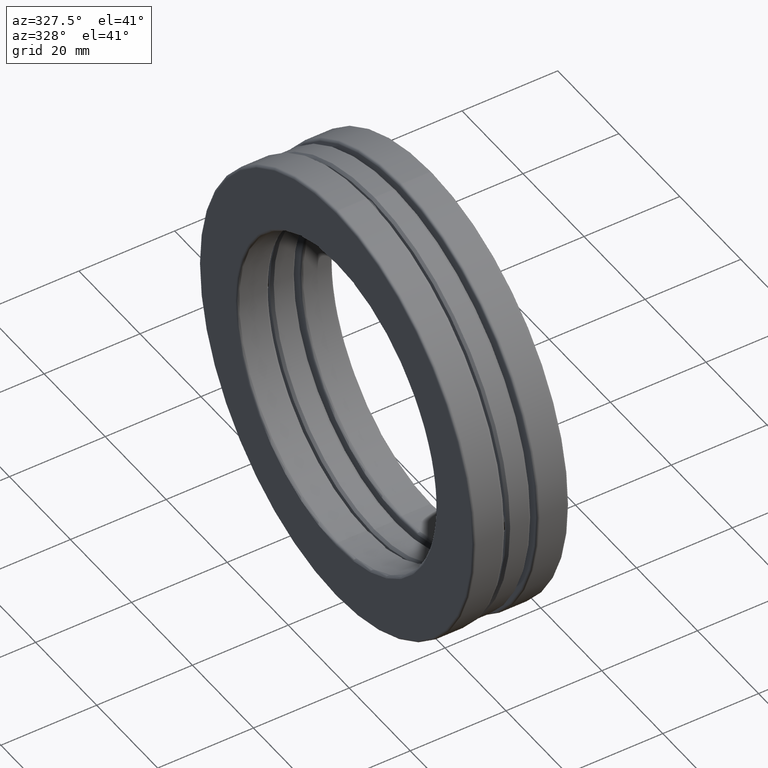
[diagram: clean part render]
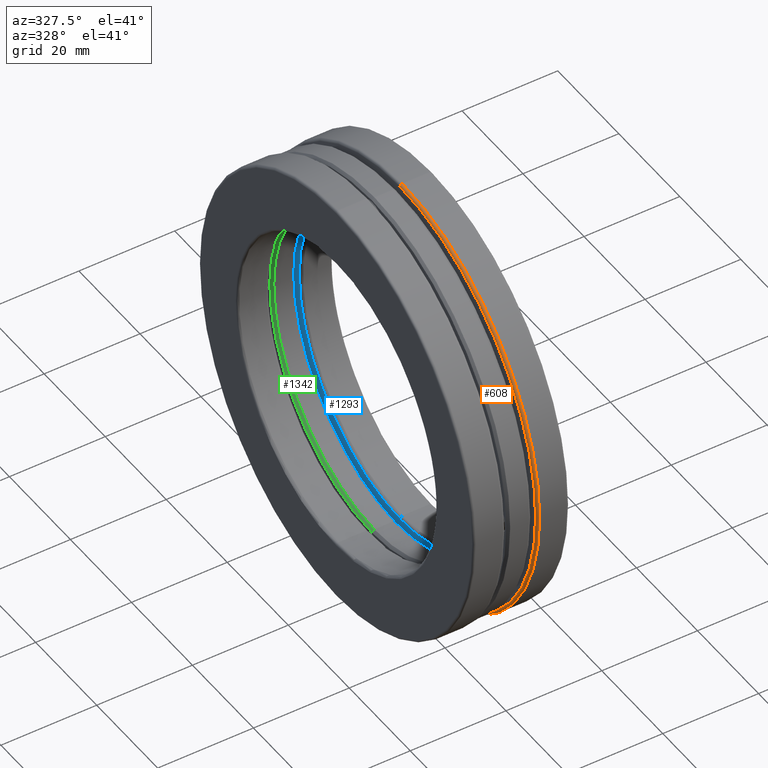
[diagram: same view with three faces highlighted in distinct colors, each labeled with its STEP entity id]
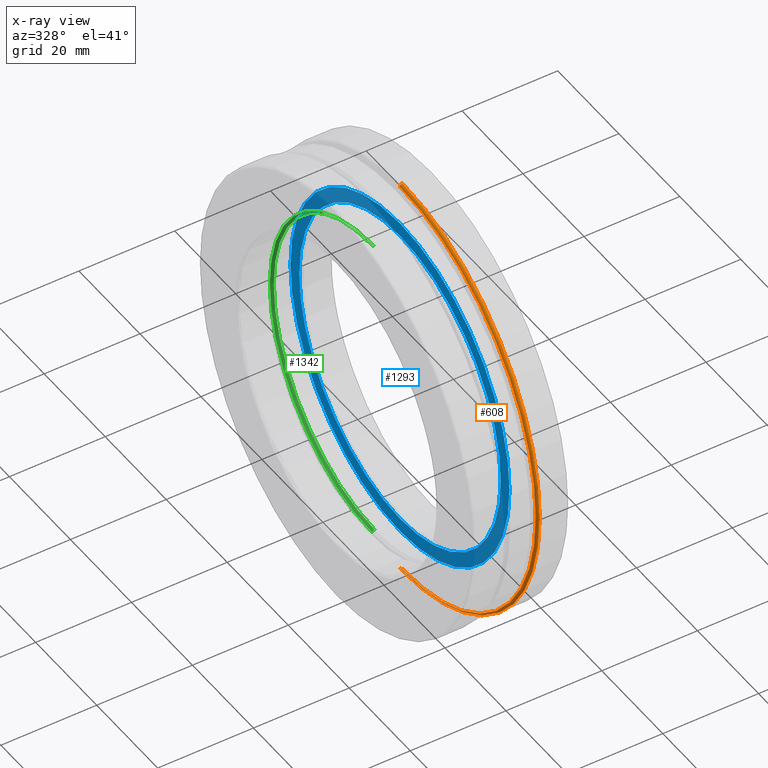
[diagram: x-ray of the same camera — body ghosted, the three highlighted faces saturated]
A machine part, auxiliary view with three faces highlighted in distinct colors.
The next image is the same camera in x-ray (body ghosted, the three faces saturated) — at least one of them is partly hidden behind the body in this view.
Their STEP definitions:

[orange] entity #608 — the highlighted toroidal blend (fillet) surface has major radius 44.4881 mm and minor (blend) radius 0.508 mm.
#23 = CARTESIAN_POINT ( 'NONE',  ( 0.1311692900000003825, 2.157215336698062273E-16, -1.751499999999999613 ) ) ;
#44 = DIRECTION ( 'NONE',  ( -1.000000000000000000, -0.0000000000000000000, -0.0000000000000000000 ) ) ;
#94 = CIRCLE ( 'NONE', #1604, 1.771499999999999631 ) ;
#105 = ORIENTED_EDGE ( 'NONE', *, *, #914, .T. ) ;
#110 = CIRCLE ( 'NONE', #789, 1.751499999999999613 ) ;
#119 = CIRCLE ( 'NONE', #490, 0.01999999999999978531 ) ;
#147 = DIRECTION ( 'NONE',  ( 0.0000000000000000000, 0.0000000000000000000, -1.000000000000000000 ) ) ;
#150 = VERTEX_POINT ( 'NONE', #1613 ) ;
#461 = AXIS2_PLACEMENT_3D ( 'NONE', #689, #981, #147 ) ;
#481 = EDGE_CURVE ( 'NONE', #150, #1442, #94, .T. ) ;
#490 = AXIS2_PLACEMENT_3D ( 'NONE', #1127, #1035, #593 ) ;
#540 = EDGE_CURVE ( 'NONE', #150, #877, #119, .T. ) ;
#593 = DIRECTION ( 'NONE',  ( 0.0000000000000000000, -1.224646799147355919E-16, 1.000000000000000000 ) ) ;
#608 = ADVANCED_FACE ( 'NONE', ( #656 ), #617, .T. ) ;
#617 = TOROIDAL_SURFACE ( 'NONE', #1635, 1.751499999999999835, 0.01999999999999976796 ) ;
#639 = VERTEX_POINT ( 'NONE', #932 ) ;
#656 = FACE_OUTER_BOUND ( 'NONE', #1600, .T. ) ;
#689 = CARTESIAN_POINT ( 'NONE',  ( 0.1511692900000001227, 0.0000000000000000000, 1.751499999999999835 ) ) ;
#768 = ORIENTED_EDGE ( 'NONE', *, *, #540, .F. ) ;
#789 = AXIS2_PLACEMENT_3D ( 'NONE', #1432, #44, #1145 ) ;
#863 = ORIENTED_EDGE ( 'NONE', *, *, #481, .T. ) ;
#877 = VERTEX_POINT ( 'NONE', #23 ) ;
#914 = EDGE_CURVE ( 'NONE', #1442, #639, #1456, .T. ) ;
#932 = CARTESIAN_POINT ( 'NONE',  ( 0.1311692900000003825, 0.0000000000000000000, 1.751499999999999613 ) ) ;
#964 = DIRECTION ( 'NONE',  ( 0.0000000000000000000, 0.0000000000000000000, 1.000000000000000000 ) ) ;
#981 = DIRECTION ( 'NONE',  ( 0.0000000000000000000, -1.000000000000000000, 0.0000000000000000000 ) ) ;
#992 = DIRECTION ( 'NONE',  ( -1.000000000000000000, -0.0000000000000000000, -0.0000000000000000000 ) ) ;
#1035 = DIRECTION ( 'NONE',  ( -0.0000000000000000000, 1.000000000000000000, 1.224646799147353207E-16 ) ) ;
#1127 = CARTESIAN_POINT ( 'NONE',  ( 0.1511692900000001227, 2.144968868706589015E-16, -1.751499999999999835 ) ) ;
#1145 = DIRECTION ( 'NONE',  ( 0.0000000000000000000, 0.0000000000000000000, 1.000000000000000000 ) ) ;
#1208 = CARTESIAN_POINT ( 'NONE',  ( 0.1511692900000001227, 0.0000000000000000000, 1.771499999999999631 ) ) ;
#1236 = CARTESIAN_POINT ( 'NONE',  ( 0.1511692900000001227, 0.0000000000000000000, 0.0000000000000000000 ) ) ;
#1298 = DIRECTION ( 'NONE',  ( 0.0000000000000000000, 0.0000000000000000000, 1.000000000000000000 ) ) ;
#1384 = DIRECTION ( 'NONE',  ( -1.000000000000000000, -0.0000000000000000000, -0.0000000000000000000 ) ) ;
#1432 = CARTESIAN_POINT ( 'NONE',  ( 0.1311692900000003825, 0.0000000000000000000, 0.0000000000000000000 ) ) ;
#1442 = VERTEX_POINT ( 'NONE', #1208 ) ;
#1456 = CIRCLE ( 'NONE', #461, 0.01999999999999978531 ) ;
#1505 = ORIENTED_EDGE ( 'NONE', *, *, #1659, .F. ) ;
#1591 = CARTESIAN_POINT ( 'NONE',  ( 0.1511692900000001227, 0.0000000000000000000, 0.0000000000000000000 ) ) ;
#1600 = EDGE_LOOP ( 'NONE', ( #768, #863, #105, #1505 ) ) ;
#1604 = AXIS2_PLACEMENT_3D ( 'NONE', #1236, #1384, #964 ) ;
#1613 = CARTESIAN_POINT ( 'NONE',  ( 0.1511692900000001227, 2.169461804689536025E-16, -1.771499999999999631 ) ) ;
#1635 = AXIS2_PLACEMENT_3D ( 'NONE', #1591, #992, #1298 ) ;
#1659 = EDGE_CURVE ( 'NONE', #877, #639, #110, .T. ) ;

[blue] entity #1293 — the highlighted planar face has unit normal (1, 0, 0).
#29 = CARTESIAN_POINT ( 'NONE',  ( 0.1311692900000003825, 0.0000000000000000000, 0.0000000000000000000 ) ) ;
#52 = DIRECTION ( 'NONE',  ( 0.0000000000000000000, 0.0000000000000000000, 1.000000000000000000 ) ) ;
#88 = CARTESIAN_POINT ( 'NONE',  ( 0.1311692900000003825, 1.591734677191772350E-16, -1.299749999999999961 ) ) ;
#184 = VERTEX_POINT ( 'NONE', #1167 ) ;
#193 = CARTESIAN_POINT ( 'NONE',  ( 0.1311692900000003825, 0.0000000000000000000, 0.0000000000000000000 ) ) ;
#210 = ORIENTED_EDGE ( 'NONE', *, *, #488, .F. ) ;
#216 = FACE_OUTER_BOUND ( 'NONE', #1573, .T. ) ;
#267 = DIRECTION ( 'NONE',  ( -1.000000000000000000, -0.0000000000000000000, -0.0000000000000000000 ) ) ;
#293 = VERTEX_POINT ( 'NONE', #1055 ) ;
#333 = DIRECTION ( 'NONE',  ( 1.000000000000000000, 0.0000000000000000000, 0.0000000000000000000 ) ) ;
#371 = EDGE_CURVE ( 'NONE', #1329, #1459, #1667, .T. ) ;
#426 = CARTESIAN_POINT ( 'NONE',  ( 0.1311692900000003825, 0.0000000000000000000, 0.0000000000000000000 ) ) ;
#443 = EDGE_CURVE ( 'NONE', #293, #184, #853, .T. ) ;
#488 = EDGE_CURVE ( 'NONE', #1459, #1329, #1549, .T. ) ;
#531 = AXIS2_PLACEMENT_3D ( 'NONE', #1784, #943, #1489 ) ;
#625 = ORIENTED_EDGE ( 'NONE', *, *, #1028, .T. ) ;
#626 = ORIENTED_EDGE ( 'NONE', *, *, #371, .F. ) ;
#667 = CARTESIAN_POINT ( 'NONE',  ( 0.1311692900000003825, 0.0000000000000000000, 1.299749999999999961 ) ) ;
#679 = ORIENTED_EDGE ( 'NONE', *, *, #443, .T. ) ;
#691 = CARTESIAN_POINT ( 'NONE',  ( 0.1311692900000003825, 0.0000000000000000000, 0.0000000000000000000 ) ) ;
#747 = EDGE_LOOP ( 'NONE', ( #210, #626 ) ) ;
#851 = FACE_BOUND ( 'NONE', #747, .T. ) ;
#853 = CIRCLE ( 'NONE', #1453, 1.413594346333711504 ) ;
#871 = DIRECTION ( 'NONE',  ( -1.000000000000000000, -0.0000000000000000000, -0.0000000000000000000 ) ) ;
#943 = DIRECTION ( 'NONE',  ( -1.000000000000000000, -0.0000000000000000000, -0.0000000000000000000 ) ) ;
#957 = DIRECTION ( 'NONE',  ( -1.000000000000000000, -0.0000000000000000000, -0.0000000000000000000 ) ) ;
#968 = DIRECTION ( 'NONE',  ( 0.0000000000000000000, 0.0000000000000000000, 1.000000000000000000 ) ) ;
#1028 = EDGE_CURVE ( 'NONE', #184, #293, #1079, .T. ) ;
#1038 = AXIS2_PLACEMENT_3D ( 'NONE', #691, #957, #968 ) ;
#1055 = CARTESIAN_POINT ( 'NONE',  ( 0.1311692900000003825, 1.868351772949180806E-16, -1.413594346333711504 ) ) ;
#1056 = AXIS2_PLACEMENT_3D ( 'NONE', #193, #333, #1154 ) ;
#1079 = CIRCLE ( 'NONE', #1470, 1.413594346333711504 ) ;
#1154 = DIRECTION ( 'NONE',  ( 0.0000000000000000000, 0.0000000000000000000, -1.000000000000000000 ) ) ;
#1167 = CARTESIAN_POINT ( 'NONE',  ( 0.1311692900000003825, 0.0000000000000000000, 1.413594346333711504 ) ) ;
#1257 = DIRECTION ( 'NONE',  ( 0.0000000000000000000, 0.0000000000000000000, 1.000000000000000000 ) ) ;
#1293 = ADVANCED_FACE ( 'NONE', ( #851, #216 ), #1718, .F. ) ;
#1329 = VERTEX_POINT ( 'NONE', #88 ) ;
#1453 = AXIS2_PLACEMENT_3D ( 'NONE', #426, #267, #1257 ) ;
#1459 = VERTEX_POINT ( 'NONE', #667 ) ;
#1470 = AXIS2_PLACEMENT_3D ( 'NONE', #29, #871, #52 ) ;
#1489 = DIRECTION ( 'NONE',  ( 0.0000000000000000000, 0.0000000000000000000, 1.000000000000000000 ) ) ;
#1549 = CIRCLE ( 'NONE', #1038, 1.299749999999999961 ) ;
#1573 = EDGE_LOOP ( 'NONE', ( #625, #679 ) ) ;
#1667 = CIRCLE ( 'NONE', #531, 1.299749999999999961 ) ;
#1718 = PLANE ( 'NONE',  #1056 ) ;
#1784 = CARTESIAN_POINT ( 'NONE',  ( 0.1311692900000003825, 0.0000000000000000000, 0.0000000000000000000 ) ) ;

[green] entity #1342 — the highlighted conical surface has half-angle 45 deg.
#14 = ORIENTED_EDGE ( 'NONE', *, *, #677, .F. ) ;
#17 = VERTEX_POINT ( 'NONE', #1538 ) ;
#66 = FACE_OUTER_BOUND ( 'NONE', #642, .T. ) ;
#70 = LINE ( 'NONE', #915, #1631 ) ;
#78 = EDGE_CURVE ( 'NONE', #1485, #1445, #1510, .T. ) ;
#252 = ORIENTED_EDGE ( 'NONE', *, *, #447, .F. ) ;
#254 = CARTESIAN_POINT ( 'NONE',  ( -0.07837499999999975042, 0.0000000000000000000, 1.299750000000000183 ) ) ;
#257 = CARTESIAN_POINT ( 'NONE',  ( -0.09837499999999969880, 0.0000000000000000000, 1.319750000000000423 ) ) ;
#359 = VECTOR ( 'NONE', #1407, 39.37007874015748143 ) ;
#447 = EDGE_CURVE ( 'NONE', #1485, #879, #1059, .T. ) ;
#564 = CARTESIAN_POINT ( 'NONE',  ( -0.07837499999999975042, 1.591734677191772597E-16, -1.299750000000000183 ) ) ;
#642 = EDGE_LOOP ( 'NONE', ( #14, #252, #860, #1780 ) ) ;
#677 = EDGE_CURVE ( 'NONE', #879, #17, #70, .T. ) ;
#843 = DIRECTION ( 'NONE',  ( -1.000000000000000000, -0.0000000000000000000, -0.0000000000000000000 ) ) ;
#847 = CARTESIAN_POINT ( 'NONE',  ( -0.07837499999999975042, 0.0000000000000000000, 0.0000000000000000000 ) ) ;
#860 = ORIENTED_EDGE ( 'NONE', *, *, #78, .T. ) ;
#879 = VERTEX_POINT ( 'NONE', #564 ) ;
#909 = CIRCLE ( 'NONE', #1410, 1.319750000000000423 ) ;
#915 = CARTESIAN_POINT ( 'NONE',  ( -0.09837499999999969880, 1.616227613174719853E-16, -1.319750000000000423 ) ) ;
#1051 = CARTESIAN_POINT ( 'NONE',  ( -0.09837499999999969880, 0.0000000000000000000, 0.0000000000000000000 ) ) ;
#1059 = CIRCLE ( 'NONE', #1357, 1.299750000000000183 ) ;
#1115 = AXIS2_PLACEMENT_3D ( 'NONE', #1051, #1348, #1628 ) ;
#1181 = CONICAL_SURFACE ( 'NONE', #1115, 1.319750000000000423, 0.7853981633974508325 ) ;
#1239 = CARTESIAN_POINT ( 'NONE',  ( -0.09837499999999969880, 0.0000000000000000000, 0.0000000000000000000 ) ) ;
#1247 = DIRECTION ( 'NONE',  ( -1.000000000000000000, -0.0000000000000000000, -0.0000000000000000000 ) ) ;
#1267 = DIRECTION ( 'NONE',  ( 0.0000000000000000000, 0.0000000000000000000, 1.000000000000000000 ) ) ;
#1272 = CARTESIAN_POINT ( 'NONE',  ( -0.09837499999999969880, 0.0000000000000000000, 1.319750000000000423 ) ) ;
#1342 = ADVANCED_FACE ( 'NONE', ( #66 ), #1181, .F. ) ;
#1348 = DIRECTION ( 'NONE',  ( -1.000000000000000000, -0.0000000000000000000, -0.0000000000000000000 ) ) ;
#1357 = AXIS2_PLACEMENT_3D ( 'NONE', #847, #843, #1802 ) ;
#1407 = DIRECTION ( 'NONE',  ( -0.7071067811865457964, 0.0000000000000000000, 0.7071067811865493491 ) ) ;
#1410 = AXIS2_PLACEMENT_3D ( 'NONE', #1239, #1247, #1267 ) ;
#1445 = VERTEX_POINT ( 'NONE', #257 ) ;
#1477 = DIRECTION ( 'NONE',  ( -0.7071067811865457964, 8.659560562354955045E-17, -0.7071067811865493491 ) ) ;
#1485 = VERTEX_POINT ( 'NONE', #254 ) ;
#1510 = LINE ( 'NONE', #1272, #359 ) ;
#1538 = CARTESIAN_POINT ( 'NONE',  ( -0.09837499999999969880, 1.616227613174719853E-16, -1.319750000000000423 ) ) ;
#1628 = DIRECTION ( 'NONE',  ( 0.0000000000000000000, 0.0000000000000000000, 1.000000000000000000 ) ) ;
#1631 = VECTOR ( 'NONE', #1477, 39.37007874015748143 ) ;
#1633 = EDGE_CURVE ( 'NONE', #1445, #17, #909, .T. ) ;
#1780 = ORIENTED_EDGE ( 'NONE', *, *, #1633, .T. ) ;
#1802 = DIRECTION ( 'NONE',  ( 0.0000000000000000000, 0.0000000000000000000, 1.000000000000000000 ) ) ;